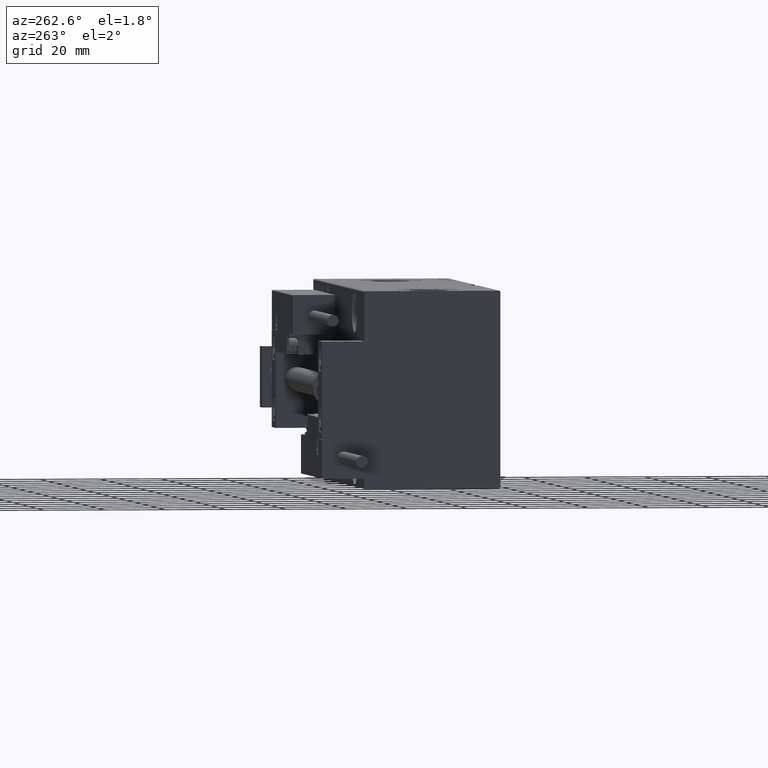
[diagram: clean part render]
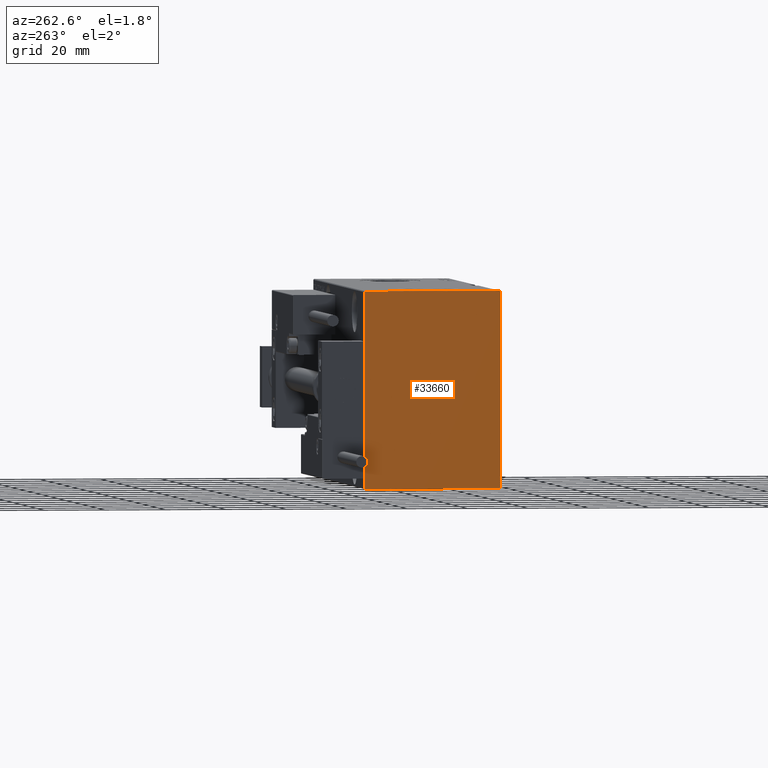
[diagram: same view with one face highlighted and labeled with its STEP entity id]
A machine part, auxiliary view. The second image highlights one B-rep face of the part: STEP entity #33660.
In plain terms, the highlighted planar face has unit normal (-1, 0, 0).
Its self-contained STEP definition (entity closure, byte-faithful):
#296 = ORIENTED_EDGE ( 'NONE', *, *, #27995, .T. ) ;
#538 = LINE ( 'NONE', #32487, #38424 ) ;
#1413 = CARTESIAN_POINT ( 'NONE',  ( 130.0000000000000000, -22.49999999999999645, -32.19999999999999574 ) ) ;
#3644 = VERTEX_POINT ( 'NONE', #39642 ) ;
#4413 = DIRECTION ( 'NONE',  ( 0.000000000000000000, -1.067522139062650425E-16, 1.000000000000000000 ) ) ;
#4616 = VERTEX_POINT ( 'NONE', #48494 ) ;
#5149 = VECTOR ( 'NONE', #25071, 1000.000000000000000 ) ;
#5196 = DIRECTION ( 'NONE',  ( 1.000000000000000000, 0.000000000000000000, 0.000000000000000000 ) ) ;
#6810 = VECTOR ( 'NONE', #25835, 1000.000000000000114 ) ;
#6905 = CARTESIAN_POINT ( 'NONE',  ( 130.0000000000000000, -22.49999999999999645, 32.50000000000000000 ) ) ;
#7075 = VERTEX_POINT ( 'NONE', #39807 ) ;
#7912 = EDGE_CURVE ( 'NONE', #3644, #12875, #36319, .T. ) ;
#8263 = EDGE_CURVE ( 'NONE', #12875, #4616, #19781, .T. ) ;
#8700 = VECTOR ( 'NONE', #4413, 1000.000000000000000 ) ;
#11190 = ORIENTED_EDGE ( 'NONE', *, *, #7912, .T. ) ;
#11988 = DIRECTION ( 'NONE',  ( 0.000000000000000000, 1.000000000000000000, 0.000000000000000000 ) ) ;
#12247 = CARTESIAN_POINT ( 'NONE',  ( 130.0000000000000000, 27.34999999999974207, 27.35000000000037446 ) ) ;
#12598 = DIRECTION ( 'NONE',  ( -0.000000000000000000, 0.7071067811865474617, 0.7071067811865474617 ) ) ;
#12875 = VERTEX_POINT ( 'NONE', #31880 ) ;
#13548 = LINE ( 'NONE', #37353, #6810 ) ;
#14814 = LINE ( 'NONE', #50414, #29174 ) ;
#16109 = DIRECTION ( 'NONE',  ( 0.000000000000000000, -1.000000000000000000, -1.541976423090495633E-16 ) ) ;
#16159 = EDGE_CURVE ( 'NONE', #44190, #3644, #48644, .T. ) ;
#16166 = CARTESIAN_POINT ( 'NONE',  ( 130.0000000000000000, -22.49999999999999645, -32.50000000000000000 ) ) ;
#18484 = VERTEX_POINT ( 'NONE', #40455 ) ;
#18902 = VECTOR ( 'NONE', #11988, 1000.000000000000000 ) ;
#19781 = LINE ( 'NONE', #44106, #40268 ) ;
#19831 = EDGE_CURVE ( 'NONE', #21614, #33212, #34126, .T. ) ;
#20586 = ORIENTED_EDGE ( 'NONE', *, *, #46904, .T. ) ;
#21614 = VERTEX_POINT ( 'NONE', #49417 ) ;
#23444 = DIRECTION ( 'NONE',  ( -0.000000000000000000, 0.7071067811865474617, -0.7071067811865474617 ) ) ;
#24713 = EDGE_LOOP ( 'NONE', ( #20586, #296, #35137, #11190, #45709, #34879, #43439, #39638 ) ) ;
#25071 = DIRECTION ( 'NONE',  ( -0.000000000000000000, -0.7071067811865556774, 0.7071067811865393571 ) ) ;
#25835 = DIRECTION ( 'NONE',  ( 0.000000000000000000, -0.7071067811865474617, -0.7071067811865474617 ) ) ;
#25947 = AXIS2_PLACEMENT_3D ( 'NONE', #29568, #5196, #36609 ) ;
#26094 = EDGE_CURVE ( 'NONE', #33212, #18484, #14814, .T. ) ;
#26128 = VECTOR ( 'NONE', #46439, 1000.000000000000000 ) ;
#26239 = CARTESIAN_POINT ( 'NONE',  ( 130.0000000000000000, 22.50000000000000355, -32.19999999999999574 ) ) ;
#27954 = LINE ( 'NONE', #16166, #18902 ) ;
#27995 = EDGE_CURVE ( 'NONE', #7075, #44190, #538, .T. ) ;
#28759 = CARTESIAN_POINT ( 'NONE',  ( 130.0000000000000000, 22.50000000000000355, -32.50000000000000000 ) ) ;
#29174 = VECTOR ( 'NONE', #23444, 1000.000000000000114 ) ;
#29568 = CARTESIAN_POINT ( 'NONE',  ( 130.0000000000000000, 0.000000000000000000, 0.000000000000000000 ) ) ;
#31880 = CARTESIAN_POINT ( 'NONE',  ( 130.0000000000000000, 22.19999999999998863, 32.50000000000000711 ) ) ;
#32487 = CARTESIAN_POINT ( 'NONE',  ( 130.0000000000000000, 27.34999999999999432, -27.34999999999999432 ) ) ;
#33212 = VERTEX_POINT ( 'NONE', #1413 ) ;
#33660 = ADVANCED_FACE ( 'NONE', ( #44731 ), #41060, .T. ) ;
#34126 = LINE ( 'NONE', #6905, #26128 ) ;
#34879 = ORIENTED_EDGE ( 'NONE', *, *, #35977, .T. ) ;
#35137 = ORIENTED_EDGE ( 'NONE', *, *, #16159, .T. ) ;
#35977 = EDGE_CURVE ( 'NONE', #4616, #21614, #13548, .T. ) ;
#36319 = LINE ( 'NONE', #12247, #5149 ) ;
#36609 = DIRECTION ( 'NONE',  ( 0.000000000000000000, 0.000000000000000000, -1.000000000000000000 ) ) ;
#37353 = CARTESIAN_POINT ( 'NONE',  ( 130.0000000000000000, -27.35000000000000497, 27.35000000000000497 ) ) ;
#38424 = VECTOR ( 'NONE', #12598, 1000.000000000000114 ) ;
#39638 = ORIENTED_EDGE ( 'NONE', *, *, #26094, .T. ) ;
#39642 = CARTESIAN_POINT ( 'NONE',  ( 130.0000000000000000, 22.49999999999999645, 32.20000000000000284 ) ) ;
#39807 = CARTESIAN_POINT ( 'NONE',  ( 130.0000000000000000, 22.19999999999998153, -32.50000000000000000 ) ) ;
#40268 = VECTOR ( 'NONE', #16109, 1000.000000000000000 ) ;
#40455 = CARTESIAN_POINT ( 'NONE',  ( 130.0000000000000000, -22.19999999999998863, -32.50000000000000000 ) ) ;
#41060 = PLANE ( 'NONE',  #25947 ) ;
#43439 = ORIENTED_EDGE ( 'NONE', *, *, #19831, .T. ) ;
#44106 = CARTESIAN_POINT ( 'NONE',  ( 130.0000000000000000, 22.49999999999999645, 32.50000000000000711 ) ) ;
#44190 = VERTEX_POINT ( 'NONE', #26239 ) ;
#44731 = FACE_OUTER_BOUND ( 'NONE', #24713, .T. ) ;
#45709 = ORIENTED_EDGE ( 'NONE', *, *, #8263, .T. ) ;
#46439 = DIRECTION ( 'NONE',  ( 0.000000000000000000, 0.000000000000000000, -1.000000000000000000 ) ) ;
#46904 = EDGE_CURVE ( 'NONE', #18484, #7075, #27954, .T. ) ;
#48494 = CARTESIAN_POINT ( 'NONE',  ( 130.0000000000000000, -22.19999999999999929, 32.50000000000000000 ) ) ;
#48644 = LINE ( 'NONE', #28759, #8700 ) ;
#49417 = CARTESIAN_POINT ( 'NONE',  ( 130.0000000000000000, -22.49999999999999645, 32.20000000000001705 ) ) ;
#50414 = CARTESIAN_POINT ( 'NONE',  ( 130.0000000000000000, -27.34999999999999076, -27.34999999999999076 ) ) ;